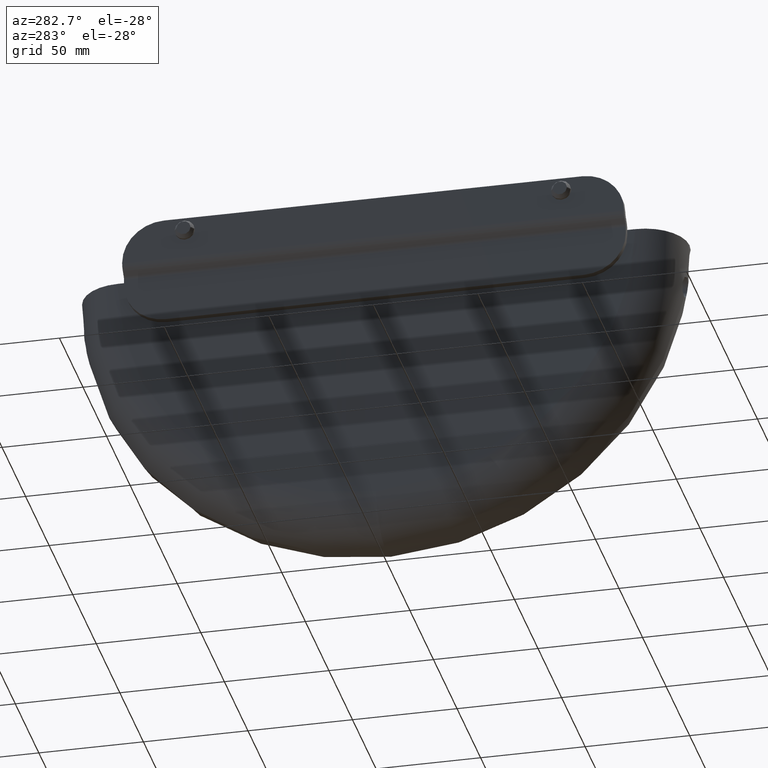
[diagram: clean part render]
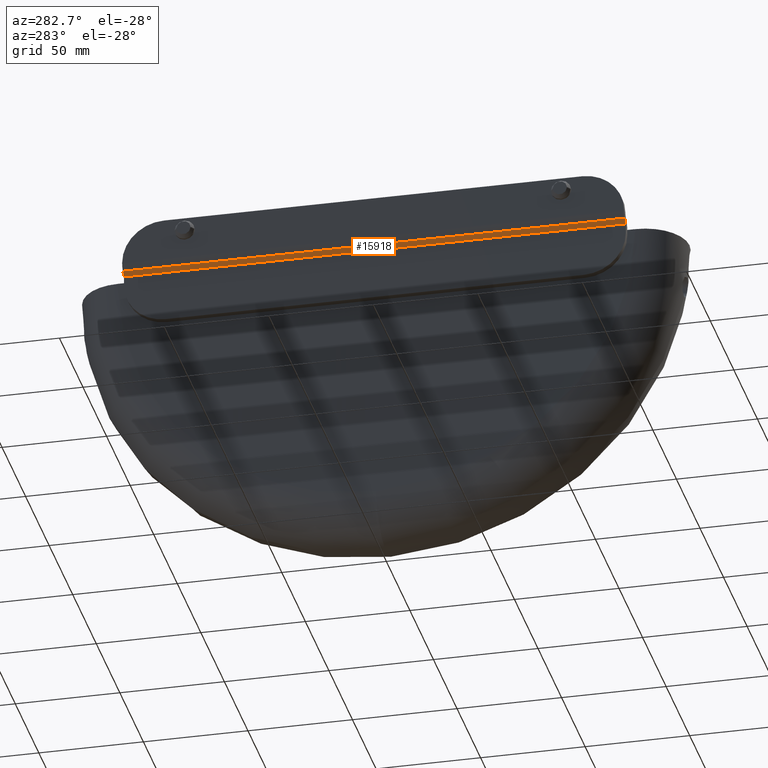
[diagram: same view with one face highlighted and labeled with its STEP entity id]
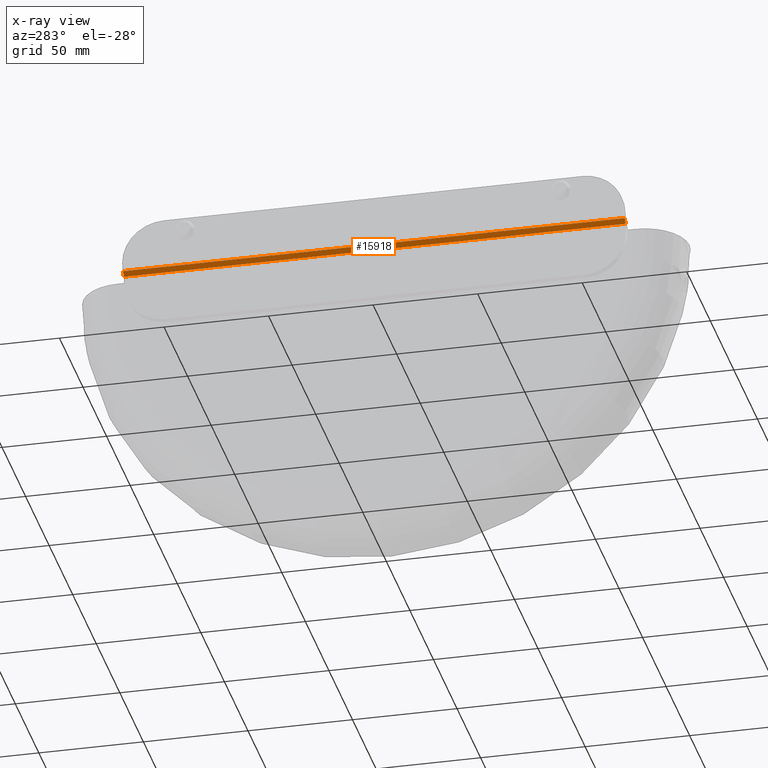
[diagram: x-ray of the same camera — body ghosted, the highlighted face saturated]
A machine part, auxiliary view. The second image highlights one B-rep face of the part: STEP entity #15918.
The next image is the same camera in x-ray: the body ghosted, the highlighted face saturated — about 0% of this face is hidden behind the body in this view.
In plain terms, the highlighted planar face has unit normal (0.7071, 0, 0.7071).
Its self-contained STEP definition (entity closure, byte-faithful):
#55 = DIRECTION ( 'NONE',  ( -0.000000000000000000, -1.000000000000000000, -0.000000000000000000 ) ) ;
#366 = ORIENTED_EDGE ( 'NONE', *, *, #5924, .F. ) ;
#635 = CARTESIAN_POINT ( 'NONE',  ( -26.73553390593272283, 120.0000000000000000, 3.363961030678903619 ) ) ;
#651 = CARTESIAN_POINT ( 'NONE',  ( -26.73553390593272283, -120.0000000000000000, 3.363961030678903619 ) ) ;
#1509 = CARTESIAN_POINT ( 'NONE',  ( -24.78578643762690348, 120.0000000000000000, 1.414213562373097810 ) ) ;
#1872 = VERTEX_POINT ( 'NONE', #12317 ) ;
#3031 = EDGE_CURVE ( 'NONE', #10847, #1872, #11452, .T. ) ;
#3660 = CARTESIAN_POINT ( 'NONE',  ( -24.78578643762690348, 120.0000000000000000, 1.414213562373097810 ) ) ;
#3718 = DIRECTION ( 'NONE',  ( 0.7071067811865492381, 0.000000000000000000, -0.7071067811865457964 ) ) ;
#3988 = VECTOR ( 'NONE', #7277, 1000.000000000000000 ) ;
#4363 = LINE ( 'NONE', #7677, #10206 ) ;
#4442 = DIRECTION ( 'NONE',  ( -0.7071067811865493491, 0.000000000000000000, 0.7071067811865456854 ) ) ;
#5574 = DIRECTION ( 'NONE',  ( -0.000000000000000000, -1.000000000000000000, -0.000000000000000000 ) ) ;
#5664 = LINE ( 'NONE', #9504, #12705 ) ;
#5924 = EDGE_CURVE ( 'NONE', #10847, #16110, #6923, .T. ) ;
#6904 = CARTESIAN_POINT ( 'NONE',  ( -24.78578643762690348, 120.0000000000000000, 1.414213562373097810 ) ) ;
#6923 = LINE ( 'NONE', #6904, #3988 ) ;
#7277 = DIRECTION ( 'NONE',  ( -0.7071067811865493491, 0.000000000000000000, 0.7071067811865456854 ) ) ;
#7461 = FACE_OUTER_BOUND ( 'NONE', #9137, .T. ) ;
#7574 = EDGE_CURVE ( 'NONE', #1872, #8141, #5664, .T. ) ;
#7677 = CARTESIAN_POINT ( 'NONE',  ( -26.73553390593272283, 120.0000000000000000, 3.363961030678903619 ) ) ;
#8141 = VERTEX_POINT ( 'NONE', #651 ) ;
#8498 = VECTOR ( 'NONE', #5574, 1000.000000000000000 ) ;
#9137 = EDGE_LOOP ( 'NONE', ( #11514, #12592, #366, #14189 ) ) ;
#9504 = CARTESIAN_POINT ( 'NONE',  ( -24.78578643762690348, -120.0000000000000000, 1.414213562373097810 ) ) ;
#10206 = VECTOR ( 'NONE', #55, 1000.000000000000000 ) ;
#10847 = VERTEX_POINT ( 'NONE', #1509 ) ;
#11452 = LINE ( 'NONE', #14256, #8498 ) ;
#11514 = ORIENTED_EDGE ( 'NONE', *, *, #7574, .T. ) ;
#12168 = AXIS2_PLACEMENT_3D ( 'NONE', #3660, #14895, #3718 ) ;
#12317 = CARTESIAN_POINT ( 'NONE',  ( -24.78578643762690348, -120.0000000000000000, 1.414213562373097810 ) ) ;
#12592 = ORIENTED_EDGE ( 'NONE', *, *, #15036, .F. ) ;
#12705 = VECTOR ( 'NONE', #4442, 1000.000000000000000 ) ;
#13816 = PLANE ( 'NONE',  #12168 ) ;
#14189 = ORIENTED_EDGE ( 'NONE', *, *, #3031, .T. ) ;
#14256 = CARTESIAN_POINT ( 'NONE',  ( -24.78578643762690348, 120.0000000000000000, 1.414213562373097810 ) ) ;
#14895 = DIRECTION ( 'NONE',  ( 0.7071067811865457964, -0.000000000000000000, 0.7071067811865492381 ) ) ;
#15036 = EDGE_CURVE ( 'NONE', #16110, #8141, #4363, .T. ) ;
#15918 = ADVANCED_FACE ( 'NONE', ( #7461 ), #13816, .F. ) ;
#16110 = VERTEX_POINT ( 'NONE', #635 ) ;